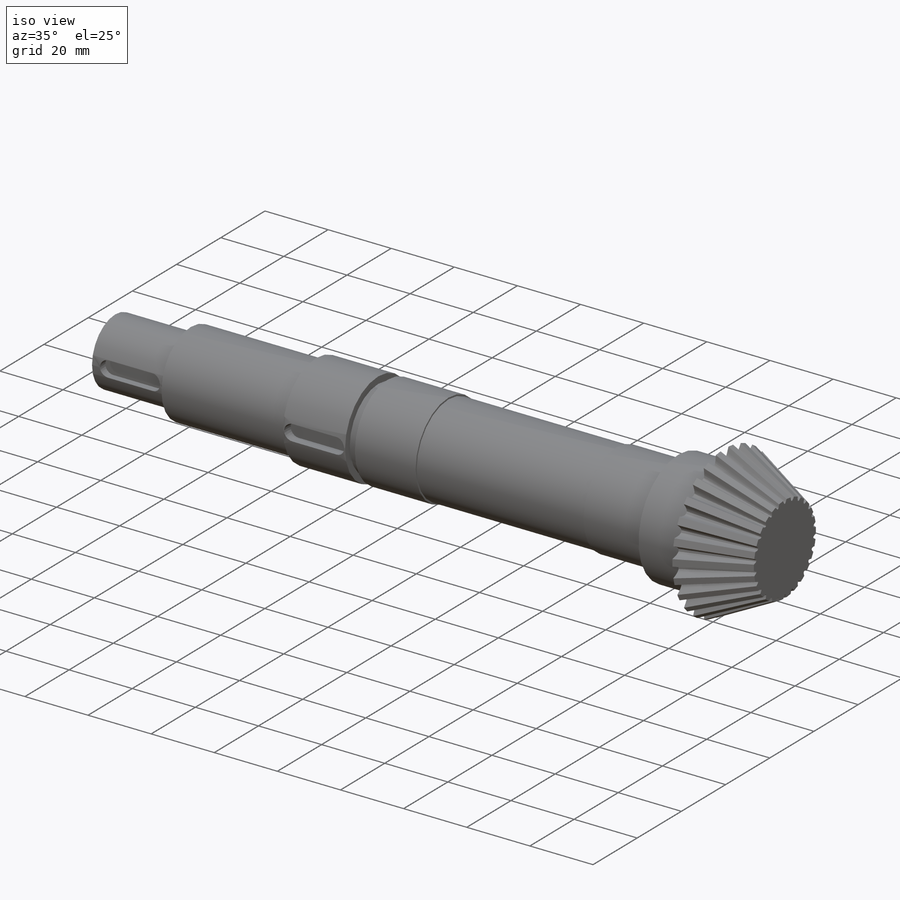
[diagram: iso view]
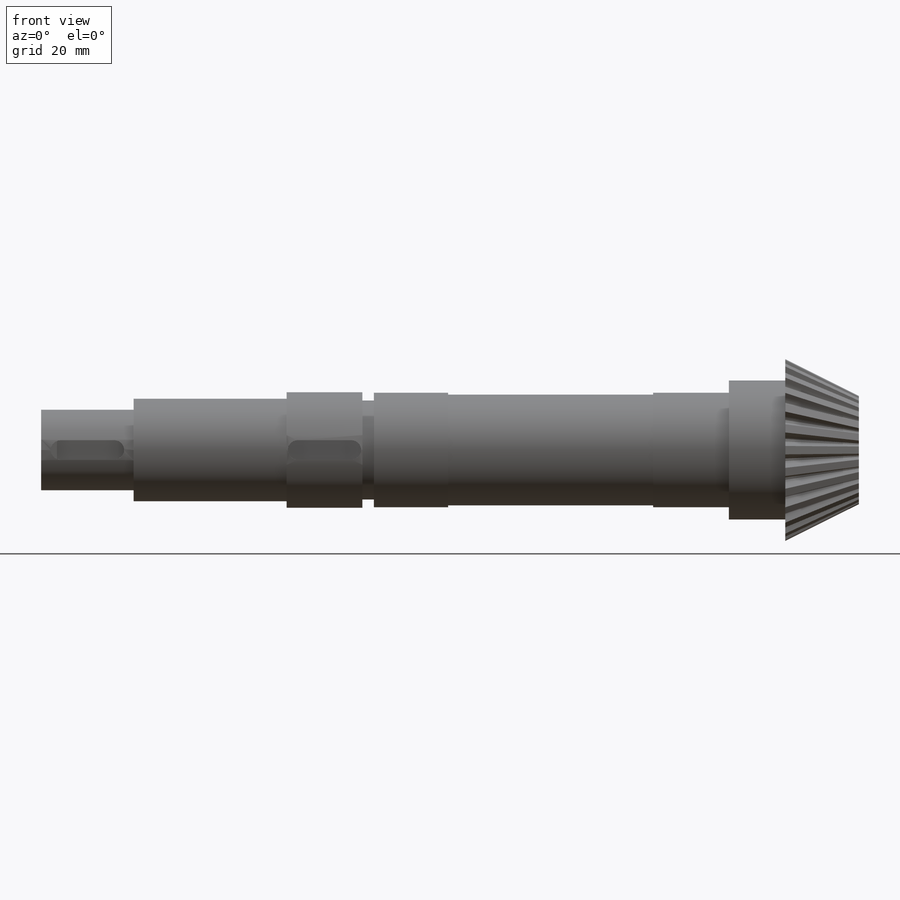
[diagram: front view]
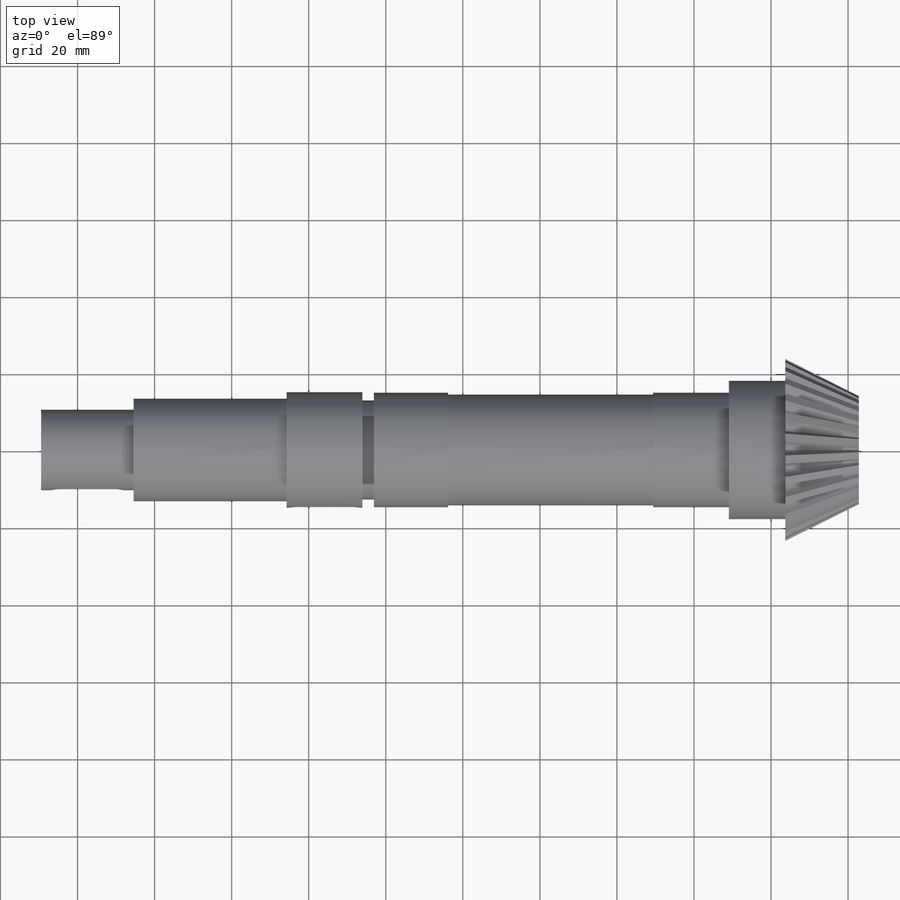
[diagram: top view]
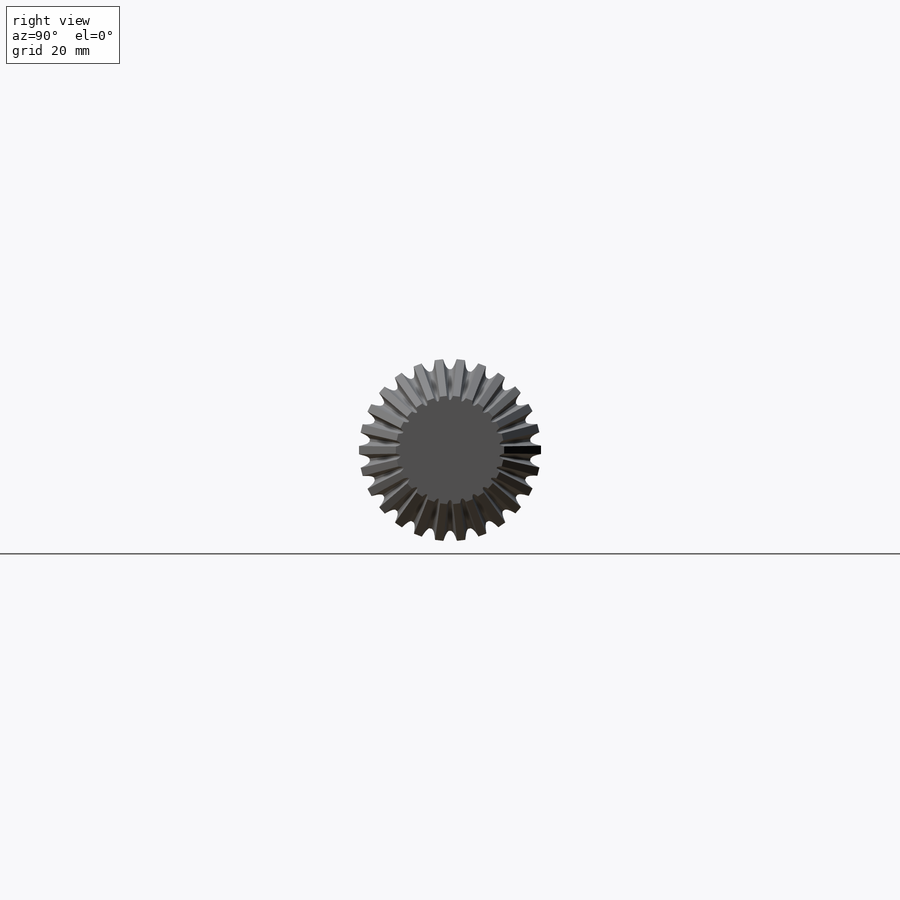
[diagram: right view]
SOLIDWORKS PART (.sldprt)
format: sldprt  version: not decoded by parser v0  size: 593,408 bytes
history: native  units: mm
features: plane x6, sketch x6, cut_extrude x2, material x1, revolve x1, pattern_circular x1 (+13 scaffold rows collapsed)
feature tree (30):
  scaffold x13  (default folders/planes/origin — collapsed)
  material  "材质 <未指定>"
  plane  "前视基准面"
  plane  "上视基准面"
  plane  "右视基准面"
  sketch  "草图1"  dims[c1.D1=19.1mm c1.D2=14.07mm c1.D3=23.65mm c1.D4=18.05mm c1.D5=33.74mm c1.D6=53.4mm c1.D7=14.86mm c1.D8=14.37mm c1.D9=53.2mm c1.D10=14.86mm c1.D11=19.26mm c1.D12=3.0mm c1.D13=15.0mm c1.D14=19.66mm c1.D15=13.3mm c1.D16=39.7mm c1.D17=10.45mm c1.D18=24.0mm c1.D19=5.0mm c1.D20=15.0mm c1.D21=~7.448772mm c2.D21=45.0deg c2.D22=2.0mm]
  revolve  "旋转1"  Angle=360deg
  sketch  "草图5"  dims[c1.D3=18.0mm c1.D1=23.65mm c2.D1=6.923deg c2.D2=23.65mm c3.D2=6.923deg]
  sketch  "草图6"  dims[c1.D3=~12.356125mm c1.D1=14.07mm c2.D1=6.923deg c2.D2=~13.680791mm c3.D2=6.923deg]
  plane  "基准面1"
  sketch  "草图8"
  pattern_circular  "阵列(圆周)6"  Count=26 Angle=360deg
  plane  "基准面2"  Offset=12mm
  sketch  "草图9"  dims[D1=14.0mm D2=5.0mm]
  cut_extrude  "切除-拉伸1"  Depth=10mm
  plane  "基准面3"  Offset=8mm
  sketch  "草图10"  dims[D1=14.0mm D2=5.0mm]
  cut_extrude  "切除-拉伸2"  Depth=10mm
decode coverage: 9 of 10 modeling features carry decoded parameters
note: ~ marks probable driven/reference dimensions
note: suppression state not decoded; provenance and decode notes live in map.json
